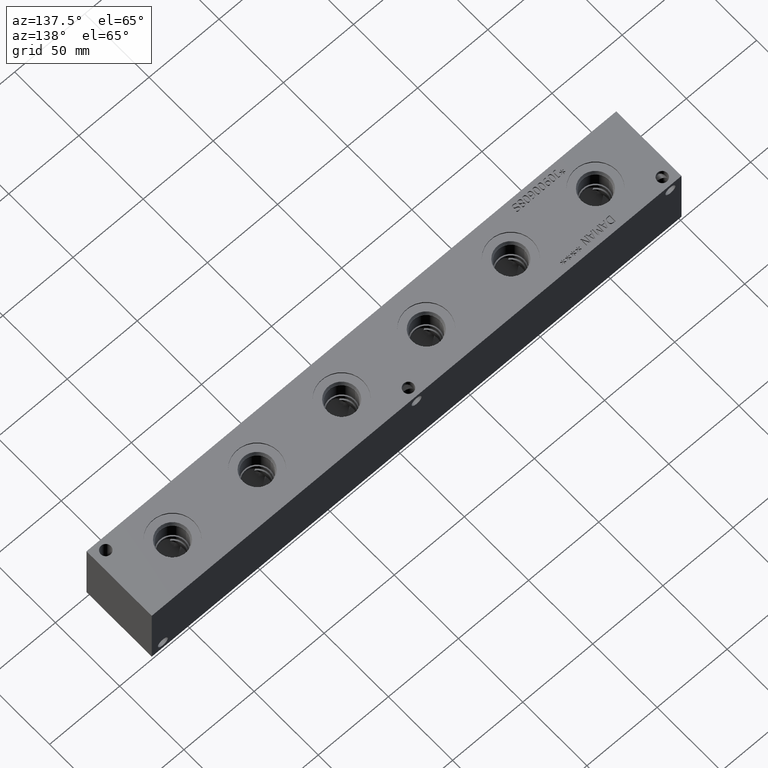
[diagram: clean part render]
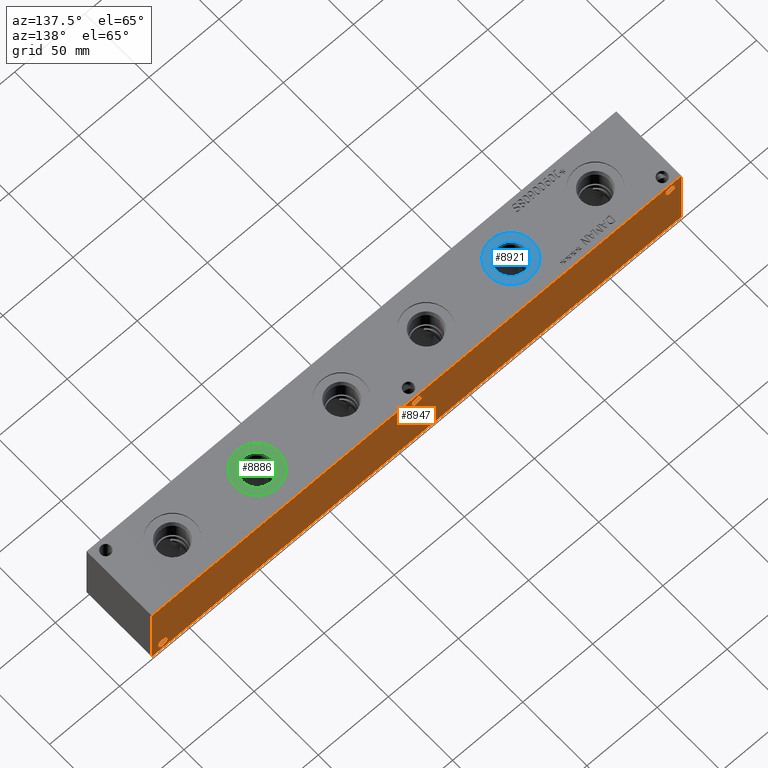
[diagram: same view with three faces highlighted in distinct colors, each labeled with its STEP entity id]
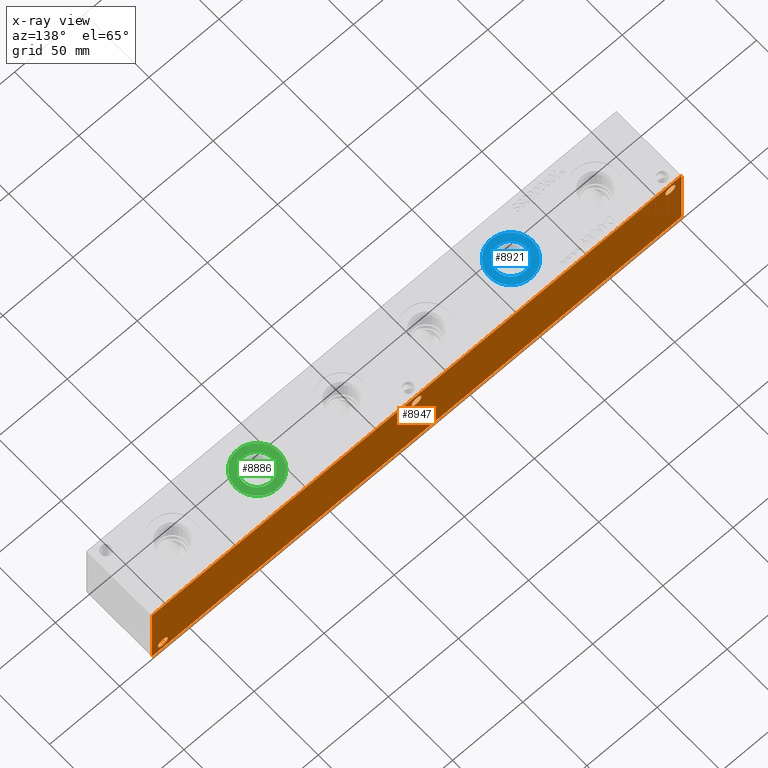
[diagram: x-ray of the same camera — body ghosted, the three highlighted faces saturated]
A machine part, auxiliary view with three faces highlighted in distinct colors.
The next image is the same camera in x-ray (body ghosted, the three faces saturated) — at least one of them is partly hidden behind the body in this view.
Their STEP definitions:

[orange] entity #8947 — the highlighted planar face has unit normal (0, 1, 0).
#388=CIRCLE('',#9534,3.5687);
#391=CIRCLE('',#9543,3.5687);
#394=CIRCLE('',#9552,3.5687);
#461=FACE_BOUND('',#1697,.T.);
#462=FACE_BOUND('',#1698,.T.);
#463=FACE_BOUND('',#1699,.T.);
#689=PLANE('',#9563);
#1161=FACE_OUTER_BOUND('',#1696,.T.);
#1696=EDGE_LOOP('',(#7991,#7992,#7993,#7994));
#1697=EDGE_LOOP('',(#7995));
#1698=EDGE_LOOP('',(#7996));
#1699=EDGE_LOOP('',(#7997));
#1949=LINE('',#14100,#2653);
#2414=LINE('',#15982,#3118);
#2415=LINE('',#15985,#3119);
#2416=LINE('',#15986,#3120);
#2653=VECTOR('',#9895,10.);
#3118=VECTOR('',#11462,10.);
#3119=VECTOR('',#11465,10.);
#3120=VECTOR('',#11466,10.);
#3740=VERTEX_POINT('',#14097);
#3741=VERTEX_POINT('',#14099);
#4236=VERTEX_POINT('',#15924);
#4241=VERTEX_POINT('',#15940);
#4246=VERTEX_POINT('',#15956);
#4250=VERTEX_POINT('',#15978);
#4252=VERTEX_POINT('',#15984);
#4739=EDGE_CURVE('',#3740,#3741,#1949,.T.);
#5478=EDGE_CURVE('',#4236,#4236,#388,.T.);
#5487=EDGE_CURVE('',#4241,#4241,#391,.T.);
#5496=EDGE_CURVE('',#4246,#4246,#394,.T.);
#5508=EDGE_CURVE('',#4250,#3741,#2414,.T.);
#5509=EDGE_CURVE('',#4252,#4250,#2415,.T.);
#5510=EDGE_CURVE('',#4252,#3740,#2416,.T.);
#7991=ORIENTED_EDGE('',*,*,#5509,.T.);
#7992=ORIENTED_EDGE('',*,*,#5508,.T.);
#7993=ORIENTED_EDGE('',*,*,#4739,.F.);
#7994=ORIENTED_EDGE('',*,*,#5510,.F.);
#7995=ORIENTED_EDGE('',*,*,#5478,.T.);
#7996=ORIENTED_EDGE('',*,*,#5487,.T.);
#7997=ORIENTED_EDGE('',*,*,#5496,.T.);
#8947=ADVANCED_FACE('',(#1161,#461,#462,#463),#689,.T.);
#9534=AXIS2_PLACEMENT_3D('',#15926,#11392,#11393);
#9543=AXIS2_PLACEMENT_3D('',#15942,#11412,#11413);
#9552=AXIS2_PLACEMENT_3D('',#15958,#11432,#11433);
#9563=AXIS2_PLACEMENT_3D('',#15983,#11463,#11464);
#9895=DIRECTION('',(-1.,0.,0.));
#11392=DIRECTION('center_axis',(0.,-1.,0.));
#11393=DIRECTION('ref_axis',(1.,0.,0.));
#11412=DIRECTION('center_axis',(0.,-1.,0.));
#11413=DIRECTION('ref_axis',(1.,0.,0.));
#11432=DIRECTION('center_axis',(0.,-1.,0.));
#11433=DIRECTION('ref_axis',(1.,0.,0.));
#11462=DIRECTION('',(0.,0.,1.));
#11463=DIRECTION('center_axis',(0.,1.,0.));
#11464=DIRECTION('ref_axis',(-1.,0.,0.));
#11465=DIRECTION('',(-1.,0.,0.));
#11466=DIRECTION('',(0.,0.,1.));
#14097=CARTESIAN_POINT('',(377.825,50.8,50.8));
#14099=CARTESIAN_POINT('',(0.,50.8,50.8));
#14100=CARTESIAN_POINT('',(377.825,50.8,50.8));
#15924=CARTESIAN_POINT('',(185.3565,50.8,44.45));
#15926=CARTESIAN_POINT('Origin',(188.9252,50.8,44.45));
#15940=CARTESIAN_POINT('',(4.3561,50.8,44.45));
#15942=CARTESIAN_POINT('Origin',(7.9248,50.8,44.45));
#15956=CARTESIAN_POINT('',(366.3061,50.8,6.35));
#15958=CARTESIAN_POINT('Origin',(369.8748,50.8,6.35));
#15978=CARTESIAN_POINT('',(0.,50.8,0.));
#15982=CARTESIAN_POINT('',(0.,50.8,0.));
#15983=CARTESIAN_POINT('Origin',(377.825,50.8,0.));
#15984=CARTESIAN_POINT('',(377.825,50.8,0.));
#15985=CARTESIAN_POINT('',(377.825,50.8,0.));
#15986=CARTESIAN_POINT('',(377.825,50.8,0.));

[blue] entity #8921 — the highlighted planar face has unit normal (0, 0, -1).
#366=CIRCLE('',#9493,15.3162);
#367=CIRCLE('',#9494,15.3162);
#368=CIRCLE('',#9496,10.2997);
#369=CIRCLE('',#9497,10.2997);
#458=FACE_BOUND('',#1668,.T.);
#685=PLANE('',#9495);
#1135=FACE_OUTER_BOUND('',#1667,.T.);
#1667=EDGE_LOOP('',(#7852,#7853));
#1668=EDGE_LOOP('',(#7854,#7855));
#4213=VERTEX_POINT('',#15850);
#4214=VERTEX_POINT('',#15852);
#4215=VERTEX_POINT('',#15856);
#4216=VERTEX_POINT('',#15857);
#5442=EDGE_CURVE('',#4213,#4214,#366,.T.);
#5443=EDGE_CURVE('',#4214,#4213,#367,.T.);
#5444=EDGE_CURVE('',#4215,#4216,#368,.T.);
#5445=EDGE_CURVE('',#4216,#4215,#369,.T.);
#7852=ORIENTED_EDGE('',*,*,#5443,.F.);
#7853=ORIENTED_EDGE('',*,*,#5442,.F.);
#7854=ORIENTED_EDGE('',*,*,#5444,.T.);
#7855=ORIENTED_EDGE('',*,*,#5445,.T.);
#8921=ADVANCED_FACE('',(#1135,#458),#685,.F.);
#9493=AXIS2_PLACEMENT_3D('',#15853,#11300,#11301);
#9494=AXIS2_PLACEMENT_3D('',#15854,#11302,#11303);
#9495=AXIS2_PLACEMENT_3D('',#15855,#11304,#11305);
#9496=AXIS2_PLACEMENT_3D('',#15858,#11306,#11307);
#9497=AXIS2_PLACEMENT_3D('',#15859,#11308,#11309);
#11300=DIRECTION('center_axis',(0.,0.,-1.));
#11301=DIRECTION('ref_axis',(1.,0.,0.));
#11302=DIRECTION('center_axis',(0.,0.,-1.));
#11303=DIRECTION('ref_axis',(1.,0.,0.));
#11304=DIRECTION('center_axis',(0.,0.,-1.));
#11305=DIRECTION('ref_axis',(-1.,0.,0.));
#11306=DIRECTION('center_axis',(0.,0.,-1.));
#11307=DIRECTION('ref_axis',(1.,0.,0.));
#11308=DIRECTION('center_axis',(0.,0.,-1.));
#11309=DIRECTION('ref_axis',(1.,0.,0.));
#15850=CARTESIAN_POINT('',(83.1088,25.4,50.0126));
#15852=CARTESIAN_POINT('',(113.7412,25.4,50.0126));
#15853=CARTESIAN_POINT('Origin',(98.425,25.4,50.0126));
#15854=CARTESIAN_POINT('Origin',(98.425,25.4,50.0126));
#15855=CARTESIAN_POINT('Origin',(108.7247,25.4,50.0126));
#15856=CARTESIAN_POINT('',(108.7247,25.4,50.0126));
#15857=CARTESIAN_POINT('',(88.1253,25.4,50.0126));
#15858=CARTESIAN_POINT('Origin',(98.425,25.4,50.0126));
#15859=CARTESIAN_POINT('Origin',(98.425,25.4,50.0126));

[green] entity #8886 — the highlighted planar face has unit normal (0, 0, -1).
#323=CIRCLE('',#9415,15.3162);
#324=CIRCLE('',#9416,15.3162);
#325=CIRCLE('',#9418,10.2997);
#326=CIRCLE('',#9419,10.2997);
#450=FACE_BOUND('',#1625,.T.);
#677=PLANE('',#9417);
#1100=FACE_OUTER_BOUND('',#1624,.T.);
#1624=EDGE_LOOP('',(#7686,#7687));
#1625=EDGE_LOOP('',(#7688,#7689));
#4175=VERTEX_POINT('',#15717);
#4176=VERTEX_POINT('',#15719);
#4177=VERTEX_POINT('',#15723);
#4178=VERTEX_POINT('',#15724);
#5382=EDGE_CURVE('',#4175,#4176,#323,.T.);
#5383=EDGE_CURVE('',#4176,#4175,#324,.T.);
#5384=EDGE_CURVE('',#4177,#4178,#325,.T.);
#5385=EDGE_CURVE('',#4178,#4177,#326,.T.);
#7686=ORIENTED_EDGE('',*,*,#5383,.F.);
#7687=ORIENTED_EDGE('',*,*,#5382,.F.);
#7688=ORIENTED_EDGE('',*,*,#5384,.T.);
#7689=ORIENTED_EDGE('',*,*,#5385,.T.);
#8886=ADVANCED_FACE('',(#1100,#450),#677,.F.);
#9415=AXIS2_PLACEMENT_3D('',#15720,#11127,#11128);
#9416=AXIS2_PLACEMENT_3D('',#15721,#11129,#11130);
#9417=AXIS2_PLACEMENT_3D('',#15722,#11131,#11132);
#9418=AXIS2_PLACEMENT_3D('',#15725,#11133,#11134);
#9419=AXIS2_PLACEMENT_3D('',#15726,#11135,#11136);
#11127=DIRECTION('center_axis',(0.,0.,-1.));
#11128=DIRECTION('ref_axis',(1.,0.,0.));
#11129=DIRECTION('center_axis',(0.,0.,-1.));
#11130=DIRECTION('ref_axis',(1.,0.,0.));
#11131=DIRECTION('center_axis',(0.,0.,-1.));
#11132=DIRECTION('ref_axis',(-1.,0.,0.));
#11133=DIRECTION('center_axis',(0.,0.,-1.));
#11134=DIRECTION('ref_axis',(1.,0.,0.));
#11135=DIRECTION('center_axis',(0.,0.,-1.));
#11136=DIRECTION('ref_axis',(1.,0.,0.));
#15717=CARTESIAN_POINT('',(264.0838,25.4,50.0126));
#15719=CARTESIAN_POINT('',(294.7162,25.4,50.0126));
#15720=CARTESIAN_POINT('Origin',(279.4,25.4,50.0126));
#15721=CARTESIAN_POINT('Origin',(279.4,25.4,50.0126));
#15722=CARTESIAN_POINT('Origin',(289.6997,25.4,50.0126));
#15723=CARTESIAN_POINT('',(289.6997,25.4,50.0126));
#15724=CARTESIAN_POINT('',(269.1003,25.4,50.0126));
#15725=CARTESIAN_POINT('Origin',(279.4,25.4,50.0126));
#15726=CARTESIAN_POINT('Origin',(279.4,25.4,50.0126));